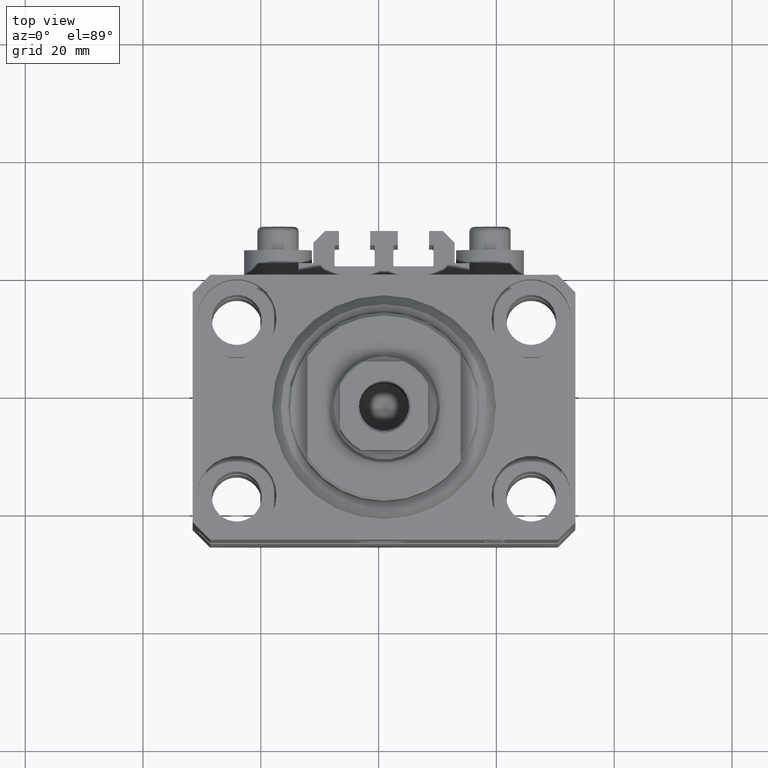
[diagram: clean part render]
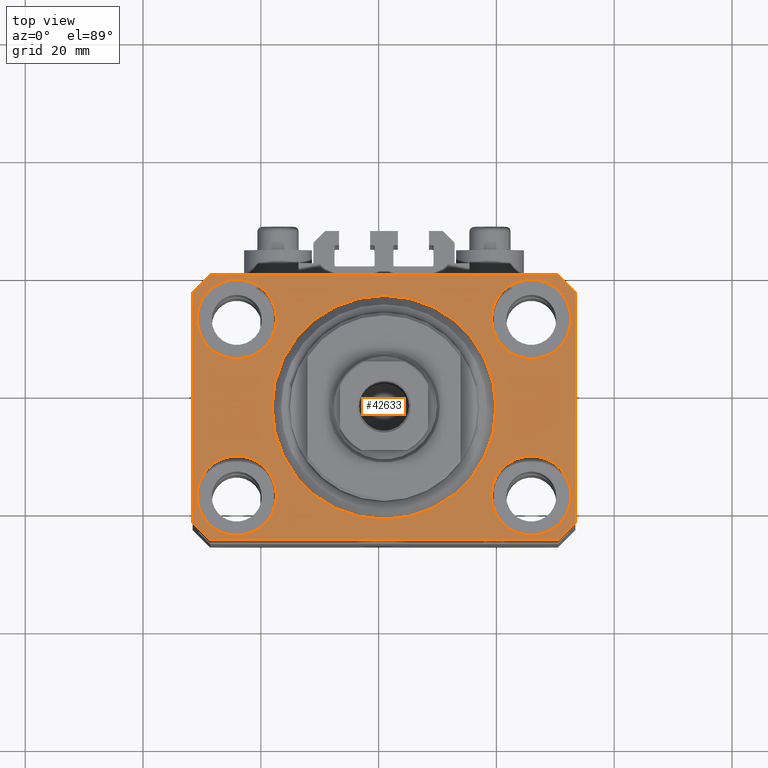
[diagram: same view with one face highlighted and labeled with its STEP entity id]
A machine part, top view. The second image highlights one B-rep face of the part: STEP entity #42633.
In plain terms, the highlighted planar face has unit normal (0, 0, 1).
Its self-contained STEP definition (entity closure, byte-faithful):
#736 = VERTEX_POINT ( 'NONE', #26769 ) ;
#785 = AXIS2_PLACEMENT_3D ( 'NONE', #5321, #40238, #15837 ) ;
#1091 = CIRCLE ( 'NONE', #46842, 6.749999999977465137 ) ;
#1196 = EDGE_CURVE ( 'NONE', #23375, #27941, #17538, .T. ) ;
#1405 = EDGE_CURVE ( 'NONE', #27367, #19762, #9688, .T. ) ;
#2279 = EDGE_LOOP ( 'NONE', ( #21307, #26969 ) ) ;
#2673 = FACE_BOUND ( 'NONE', #3104, .T. ) ;
#3104 = EDGE_LOOP ( 'NONE', ( #44042, #31647 ) ) ;
#3812 = DIRECTION ( 'NONE',  ( 1.000000000000000000, 0.000000000000000000, 0.000000000000000000 ) ) ;
#3857 = DIRECTION ( 'NONE',  ( 0.7071067811865474617, -0.7071067811865474617, 0.000000000000000000 ) ) ;
#4651 = CARTESIAN_POINT ( 'NONE',  ( -25.00000000000000355, -15.00000000000000000, 0.000000000000000000 ) ) ;
#4776 = ORIENTED_EDGE ( 'NONE', *, *, #43152, .F. ) ;
#5074 = CARTESIAN_POINT ( 'NONE',  ( 18.25000000002253842, -15.00000000000000000, 0.000000000000000000 ) ) ;
#5089 = DIRECTION ( 'NONE',  ( 1.000000000000000000, 0.000000000000000000, 0.000000000000000000 ) ) ;
#5183 = VERTEX_POINT ( 'NONE', #35716 ) ;
#5274 = CARTESIAN_POINT ( 'NONE',  ( -18.24999999997747224, 15.00000000000000000, 0.000000000000000000 ) ) ;
#5321 = CARTESIAN_POINT ( 'NONE',  ( 0.000000000000000000, 0.000000000000000000, 0.000000000000000000 ) ) ;
#5523 = CARTESIAN_POINT ( 'NONE',  ( -32.49999999999650413, 19.49999999999949907, 0.000000000000000000 ) ) ;
#5765 = EDGE_CURVE ( 'NONE', #9576, #736, #16701, .T. ) ;
#5875 = LINE ( 'NONE', #46196, #38367 ) ;
#6126 = EDGE_CURVE ( 'NONE', #39138, #10428, #26517, .T. ) ;
#6183 = LINE ( 'NONE', #23637, #34363 ) ;
#6212 = ORIENTED_EDGE ( 'NONE', *, *, #36531, .T. ) ;
#6342 = ORIENTED_EDGE ( 'NONE', *, *, #8839, .F. ) ;
#6596 = ORIENTED_EDGE ( 'NONE', *, *, #38611, .F. ) ;
#7016 = CARTESIAN_POINT ( 'NONE',  ( 18.25000000004154543, 15.00000000000000888, 0.000000000000000000 ) ) ;
#7665 = CIRCLE ( 'NONE', #29048, 6.750000000041541881 ) ;
#8807 = DIRECTION ( 'NONE',  ( -0.7071067811865352493, 0.7071067811865597852, 0.000000000000000000 ) ) ;
#8839 = EDGE_CURVE ( 'NONE', #12372, #45840, #31201, .T. ) ;
#8995 = CARTESIAN_POINT ( 'NONE',  ( 31.74999999995845101, 15.00000000000000888, 0.000000000000000000 ) ) ;
#9066 = CARTESIAN_POINT ( 'NONE',  ( -29.49999999999650413, -22.49999999999949907, 0.000000000000000000 ) ) ;
#9455 = CARTESIAN_POINT ( 'NONE',  ( 32.49999999999651124, -19.49999999999949196, 0.000000000000000000 ) ) ;
#9576 = VERTEX_POINT ( 'NONE', #5274 ) ;
#9688 = CIRCLE ( 'NONE', #17298, 6.749999999958452790 ) ;
#9855 = FACE_BOUND ( 'NONE', #45360, .T. ) ;
#10085 = FACE_BOUND ( 'NONE', #12113, .T. ) ;
#10313 = CARTESIAN_POINT ( 'NONE',  ( -18.24999999995846167, -15.00000000000000000, 0.000000000000000000 ) ) ;
#10324 = PLANE ( 'NONE',  #40797 ) ;
#10428 = VERTEX_POINT ( 'NONE', #5523 ) ;
#10898 = DIRECTION ( 'NONE',  ( 0.000000000000000000, 0.000000000000000000, 1.000000000000000000 ) ) ;
#11219 = VERTEX_POINT ( 'NONE', #21975 ) ;
#11415 = CARTESIAN_POINT ( 'NONE',  ( 29.49999999999650413, -22.49999999999949196, 0.000000000000000000 ) ) ;
#11775 = VECTOR ( 'NONE', #15756, 1000.000000000000000 ) ;
#12113 = EDGE_LOOP ( 'NONE', ( #38803, #6342 ) ) ;
#12199 = DIRECTION ( 'NONE',  ( -0.7071067811865474617, -0.7071067811865474617, 0.000000000000000000 ) ) ;
#12372 = VERTEX_POINT ( 'NONE', #5074 ) ;
#13370 = DIRECTION ( 'NONE',  ( 0.000000000000000000, 0.000000000000000000, 1.000000000000000000 ) ) ;
#13434 = FACE_OUTER_BOUND ( 'NONE', #40617, .T. ) ;
#13743 = CARTESIAN_POINT ( 'NONE',  ( 32.49999999999702993, 19.49999999999945999, 0.000000000000000000 ) ) ;
#15697 = EDGE_LOOP ( 'NONE', ( #40931, #6596 ) ) ;
#15756 = DIRECTION ( 'NONE',  ( -1.000000000000000000, -2.352167425053553784E-16, 0.000000000000000000 ) ) ;
#15837 = DIRECTION ( 'NONE',  ( 1.000000000000000000, 0.000000000000000000, 0.000000000000000000 ) ) ;
#16232 = DIRECTION ( 'NONE',  ( 1.000000000000000000, 1.176083712526788232E-16, 0.000000000000000000 ) ) ;
#16277 = CARTESIAN_POINT ( 'NONE',  ( 25.00000000000000355, -15.00000000000000000, 0.000000000000000000 ) ) ;
#16311 = CARTESIAN_POINT ( 'NONE',  ( -25.00000000000000355, 15.00000000000000000, 0.000000000000000000 ) ) ;
#16468 = LINE ( 'NONE', #9066, #24701 ) ;
#16658 = CARTESIAN_POINT ( 'NONE',  ( -25.00000000000000355, 15.00000000000000000, 0.000000000000000000 ) ) ;
#16684 = VERTEX_POINT ( 'NONE', #22844 ) ;
#16701 = CIRCLE ( 'NONE', #25091, 6.750000000022533087 ) ;
#16779 = ORIENTED_EDGE ( 'NONE', *, *, #33081, .T. ) ;
#17067 = DIRECTION ( 'NONE',  ( 0.7071067811865483499, 0.7071067811865466846, 0.000000000000000000 ) ) ;
#17298 = AXIS2_PLACEMENT_3D ( 'NONE', #19197, #23724, #5089 ) ;
#17538 = LINE ( 'NONE', #31412, #40912 ) ;
#18237 = VECTOR ( 'NONE', #12199, 1000.000000000000114 ) ;
#19001 = VERTEX_POINT ( 'NONE', #13743 ) ;
#19197 = CARTESIAN_POINT ( 'NONE',  ( 24.99999999999999645, 15.00000000000000888, 0.000000000000000000 ) ) ;
#19408 = EDGE_CURVE ( 'NONE', #11219, #28818, #22485, .T. ) ;
#19526 = EDGE_CURVE ( 'NONE', #45840, #12372, #1091, .T. ) ;
#19762 = VERTEX_POINT ( 'NONE', #8995 ) ;
#20086 = AXIS2_PLACEMENT_3D ( 'NONE', #21972, #36521, #3812 ) ;
#20489 = DIRECTION ( 'NONE',  ( 1.000000000000000000, 0.000000000000000000, 0.000000000000000000 ) ) ;
#20606 = VERTEX_POINT ( 'NONE', #10313 ) ;
#20995 = DIRECTION ( 'NONE',  ( 1.000000000000000000, 0.000000000000000000, 0.000000000000000000 ) ) ;
#21307 = ORIENTED_EDGE ( 'NONE', *, *, #34138, .F. ) ;
#21823 = EDGE_CURVE ( 'NONE', #42431, #16684, #27486, .T. ) ;
#21833 = CARTESIAN_POINT ( 'NONE',  ( 25.00000000000000355, -15.00000000000000000, 0.000000000000000000 ) ) ;
#21972 = CARTESIAN_POINT ( 'NONE',  ( -25.00000000000000355, -15.00000000000000000, 0.000000000000000000 ) ) ;
#21975 = CARTESIAN_POINT ( 'NONE',  ( -32.49999999999650413, -19.49999999999949907, 0.000000000000000000 ) ) ;
#22180 = LINE ( 'NONE', #45787, #25584 ) ;
#22485 = LINE ( 'NONE', #32765, #29331 ) ;
#22844 = CARTESIAN_POINT ( 'NONE',  ( -19.00000000000000000, 2.326828918379970970E-15, 0.000000000000000000 ) ) ;
#23164 = EDGE_CURVE ( 'NONE', #27941, #19001, #6183, .T. ) ;
#23319 = CARTESIAN_POINT ( 'NONE',  ( -29.49999999999650413, -22.49999999999949907, 0.000000000000000000 ) ) ;
#23375 = VERTEX_POINT ( 'NONE', #11415 ) ;
#23426 = ORIENTED_EDGE ( 'NONE', *, *, #1196, .T. ) ;
#23637 = CARTESIAN_POINT ( 'NONE',  ( 32.49999999999651124, -19.49999999999949196, 0.000000000000000000 ) ) ;
#23724 = DIRECTION ( 'NONE',  ( 0.000000000000000000, 0.000000000000000000, 1.000000000000000000 ) ) ;
#23733 = EDGE_CURVE ( 'NONE', #26080, #20606, #7665, .T. ) ;
#24407 = FACE_BOUND ( 'NONE', #15697, .T. ) ;
#24701 = VECTOR ( 'NONE', #16232, 1000.000000000000000 ) ;
#24939 = DIRECTION ( 'NONE',  ( 1.000000000000000000, 0.000000000000000000, 0.000000000000000000 ) ) ;
#25091 = AXIS2_PLACEMENT_3D ( 'NONE', #16311, #26819, #44462 ) ;
#25487 = AXIS2_PLACEMENT_3D ( 'NONE', #16658, #43356, #39541 ) ;
#25584 = VECTOR ( 'NONE', #8807, 1000.000000000000000 ) ;
#26080 = VERTEX_POINT ( 'NONE', #38878 ) ;
#26355 = AXIS2_PLACEMENT_3D ( 'NONE', #32166, #31236, #20489 ) ;
#26517 = LINE ( 'NONE', #33914, #18237 ) ;
#26769 = CARTESIAN_POINT ( 'NONE',  ( -31.75000000002253842, 15.00000000000000000, 0.000000000000000000 ) ) ;
#26819 = DIRECTION ( 'NONE',  ( 0.000000000000000000, 0.000000000000000000, 1.000000000000000000 ) ) ;
#26969 = ORIENTED_EDGE ( 'NONE', *, *, #23733, .F. ) ;
#27146 = ORIENTED_EDGE ( 'NONE', *, *, #6126, .T. ) ;
#27367 = VERTEX_POINT ( 'NONE', #7016 ) ;
#27486 = CIRCLE ( 'NONE', #785, 19.00000000000000000 ) ;
#27499 = DIRECTION ( 'NONE',  ( 0.000000000000000000, 0.000000000000000000, 1.000000000000000000 ) ) ;
#27941 = VERTEX_POINT ( 'NONE', #9455 ) ;
#28054 = ORIENTED_EDGE ( 'NONE', *, *, #39229, .T. ) ;
#28818 = VERTEX_POINT ( 'NONE', #23319 ) ;
#29048 = AXIS2_PLACEMENT_3D ( 'NONE', #4651, #10898, #33784 ) ;
#29331 = VECTOR ( 'NONE', #3857, 1000.000000000000114 ) ;
#30841 = DIRECTION ( 'NONE',  ( 1.000000000000000000, 0.000000000000000000, 0.000000000000000000 ) ) ;
#31201 = CIRCLE ( 'NONE', #41047, 6.749999999977465137 ) ;
#31236 = DIRECTION ( 'NONE',  ( 0.000000000000000000, 0.000000000000000000, 1.000000000000000000 ) ) ;
#31412 = CARTESIAN_POINT ( 'NONE',  ( 29.49999999999650413, -22.49999999999949196, 0.000000000000000000 ) ) ;
#31504 = DIRECTION ( 'NONE',  ( 1.334402673828349134E-14, 1.000000000000000000, 0.000000000000000000 ) ) ;
#31647 = ORIENTED_EDGE ( 'NONE', *, *, #42139, .F. ) ;
#31667 = DIRECTION ( 'NONE',  ( 0.000000000000000000, -1.000000000000000000, 0.000000000000000000 ) ) ;
#32166 = CARTESIAN_POINT ( 'NONE',  ( 24.99999999999999645, 15.00000000000000888, 0.000000000000000000 ) ) ;
#32512 = CARTESIAN_POINT ( 'NONE',  ( 0.000000000000000000, 0.000000000000000000, 0.000000000000000000 ) ) ;
#32765 = CARTESIAN_POINT ( 'NONE',  ( -32.49999999999650413, -19.49999999999949907, 0.000000000000000000 ) ) ;
#33081 = EDGE_CURVE ( 'NONE', #10428, #11219, #5875, .T. ) ;
#33784 = DIRECTION ( 'NONE',  ( 1.000000000000000000, 0.000000000000000000, 0.000000000000000000 ) ) ;
#33914 = CARTESIAN_POINT ( 'NONE',  ( -29.49999999999650413, 22.49999999999949907, 0.000000000000000000 ) ) ;
#34133 = CARTESIAN_POINT ( 'NONE',  ( 29.49999999999707967, 22.49999999999951328, 0.000000000000000000 ) ) ;
#34138 = EDGE_CURVE ( 'NONE', #20606, #26080, #42184, .T. ) ;
#34295 = EDGE_CURVE ( 'NONE', #28818, #23375, #16468, .T. ) ;
#34363 = VECTOR ( 'NONE', #31504, 1000.000000000000000 ) ;
#35476 = CIRCLE ( 'NONE', #43860, 19.00000000000000000 ) ;
#35546 = ORIENTED_EDGE ( 'NONE', *, *, #19408, .T. ) ;
#35716 = CARTESIAN_POINT ( 'NONE',  ( 29.49999999999707967, 22.49999999999951328, 0.000000000000000000 ) ) ;
#36521 = DIRECTION ( 'NONE',  ( 0.000000000000000000, 0.000000000000000000, 1.000000000000000000 ) ) ;
#36531 = EDGE_CURVE ( 'NONE', #5183, #39138, #45341, .T. ) ;
#37149 = ORIENTED_EDGE ( 'NONE', *, *, #1405, .F. ) ;
#38367 = VECTOR ( 'NONE', #31667, 1000.000000000000000 ) ;
#38611 = EDGE_CURVE ( 'NONE', #736, #9576, #44614, .T. ) ;
#38803 = ORIENTED_EDGE ( 'NONE', *, *, #19526, .F. ) ;
#38878 = CARTESIAN_POINT ( 'NONE',  ( -31.75000000004154899, -15.00000000000000000, 0.000000000000000000 ) ) ;
#38890 = CARTESIAN_POINT ( 'NONE',  ( 0.000000000000000000, 0.000000000000000000, 0.000000000000000000 ) ) ;
#38956 = FACE_BOUND ( 'NONE', #2279, .T. ) ;
#39138 = VERTEX_POINT ( 'NONE', #44599 ) ;
#39177 = ORIENTED_EDGE ( 'NONE', *, *, #23164, .T. ) ;
#39229 = EDGE_CURVE ( 'NONE', #19001, #5183, #22180, .T. ) ;
#39541 = DIRECTION ( 'NONE',  ( 1.000000000000000000, 0.000000000000000000, 0.000000000000000000 ) ) ;
#40238 = DIRECTION ( 'NONE',  ( 0.000000000000000000, 0.000000000000000000, 1.000000000000000000 ) ) ;
#40617 = EDGE_LOOP ( 'NONE', ( #6212, #27146, #16779, #35546, #42720, #23426, #39177, #28054 ) ) ;
#40797 = AXIS2_PLACEMENT_3D ( 'NONE', #32512, #43234, #47037 ) ;
#40912 = VECTOR ( 'NONE', #17067, 1000.000000000000000 ) ;
#40931 = ORIENTED_EDGE ( 'NONE', *, *, #5765, .F. ) ;
#41047 = AXIS2_PLACEMENT_3D ( 'NONE', #21833, #44230, #24939 ) ;
#41390 = CARTESIAN_POINT ( 'NONE',  ( 31.74999999997746869, -15.00000000000000000, 0.000000000000000000 ) ) ;
#42139 = EDGE_CURVE ( 'NONE', #16684, #42431, #35476, .T. ) ;
#42184 = CIRCLE ( 'NONE', #20086, 6.750000000041541881 ) ;
#42431 = VERTEX_POINT ( 'NONE', #44038 ) ;
#42633 = ADVANCED_FACE ( 'NONE', ( #38956, #10085, #9855, #24407, #2673, #13434 ), #10324, .T. ) ;
#42720 = ORIENTED_EDGE ( 'NONE', *, *, #34295, .T. ) ;
#43152 = EDGE_CURVE ( 'NONE', #19762, #27367, #46173, .T. ) ;
#43234 = DIRECTION ( 'NONE',  ( 0.000000000000000000, 0.000000000000000000, 1.000000000000000000 ) ) ;
#43356 = DIRECTION ( 'NONE',  ( 0.000000000000000000, 0.000000000000000000, 1.000000000000000000 ) ) ;
#43860 = AXIS2_PLACEMENT_3D ( 'NONE', #38890, #13370, #20995 ) ;
#44038 = CARTESIAN_POINT ( 'NONE',  ( 19.00000000000000000, 0.000000000000000000, 0.000000000000000000 ) ) ;
#44042 = ORIENTED_EDGE ( 'NONE', *, *, #21823, .F. ) ;
#44230 = DIRECTION ( 'NONE',  ( 0.000000000000000000, 0.000000000000000000, 1.000000000000000000 ) ) ;
#44462 = DIRECTION ( 'NONE',  ( 1.000000000000000000, 0.000000000000000000, 0.000000000000000000 ) ) ;
#44599 = CARTESIAN_POINT ( 'NONE',  ( -29.49999999999650413, 22.49999999999949907, 0.000000000000000000 ) ) ;
#44614 = CIRCLE ( 'NONE', #25487, 6.750000000022533087 ) ;
#45341 = LINE ( 'NONE', #34133, #11775 ) ;
#45360 = EDGE_LOOP ( 'NONE', ( #4776, #37149 ) ) ;
#45787 = CARTESIAN_POINT ( 'NONE',  ( 32.49999999999702993, 19.49999999999945999, 0.000000000000000000 ) ) ;
#45840 = VERTEX_POINT ( 'NONE', #41390 ) ;
#46173 = CIRCLE ( 'NONE', #26355, 6.749999999958452790 ) ;
#46196 = CARTESIAN_POINT ( 'NONE',  ( -32.49999999999650413, 19.49999999999949907, 0.000000000000000000 ) ) ;
#46842 = AXIS2_PLACEMENT_3D ( 'NONE', #16277, #27499, #30841 ) ;
#47037 = DIRECTION ( 'NONE',  ( 1.000000000000000000, 0.000000000000000000, -0.000000000000000000 ) ) ;